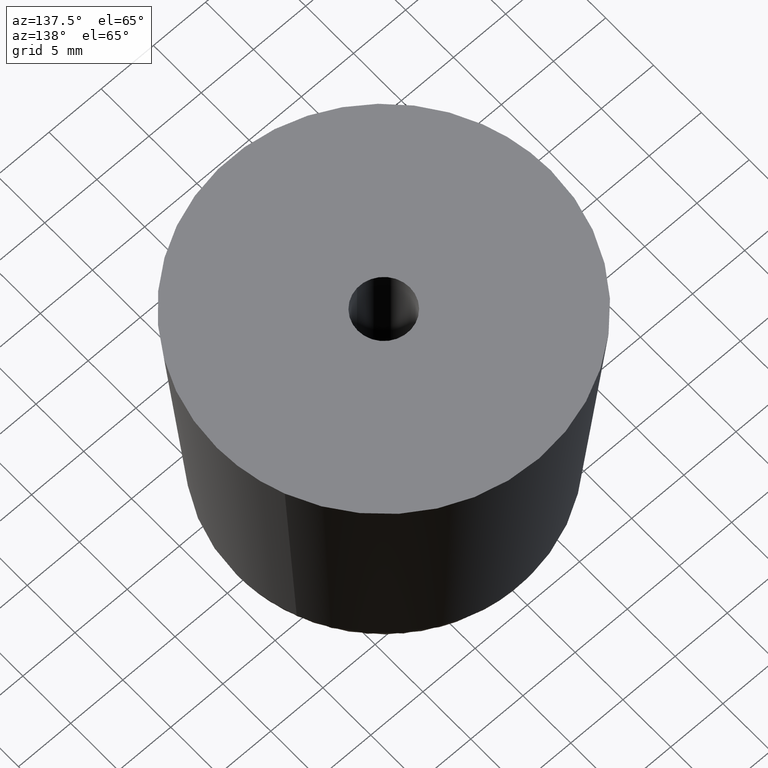
[diagram: clean part render]
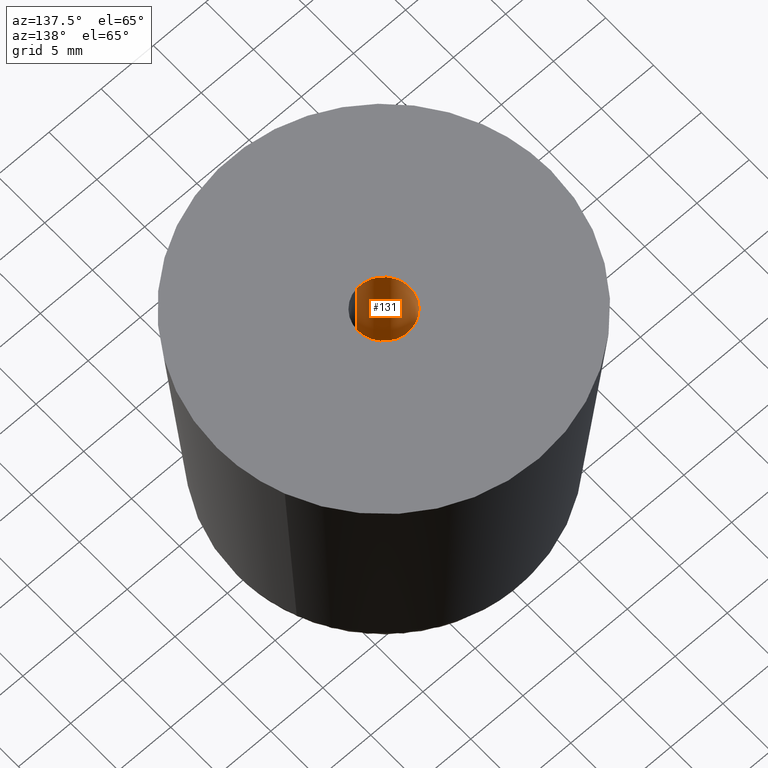
[diagram: same view with one face highlighted and labeled with its STEP entity id]
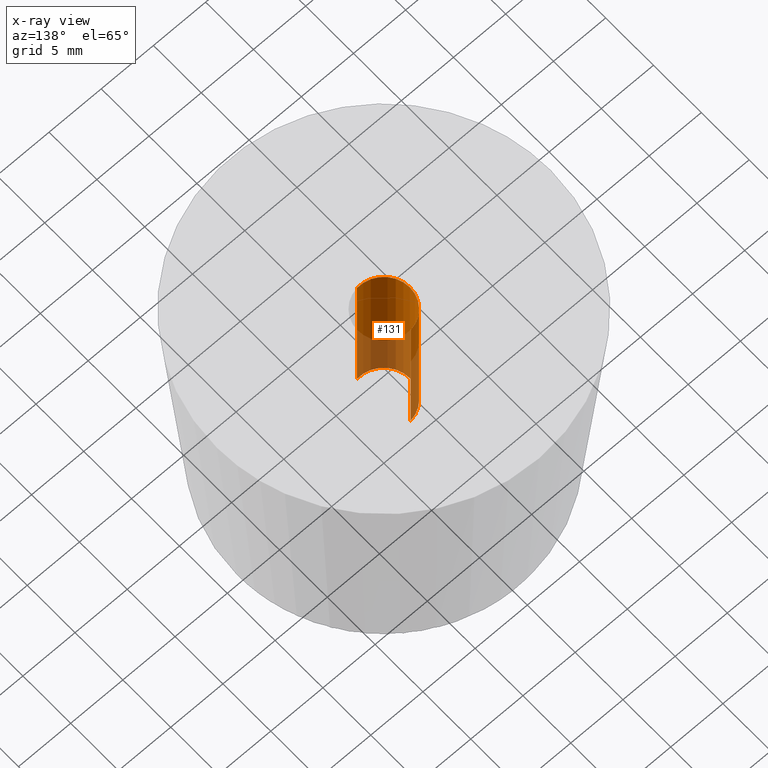
[diagram: x-ray of the same camera — body ghosted, the highlighted face saturated]
A machine part, auxiliary view. The second image highlights one B-rep face of the part: STEP entity #131.
The next image is the same camera in x-ray: the body ghosted, the highlighted face saturated — about 39% of this face is hidden behind the body in this view.
In plain terms, the highlighted cylindrical surface (edge-blend (fillet) strip) has radius 2.5 mm, axis along (-0, -0, 1).
Its self-contained STEP definition (entity closure, byte-faithful):
#131=ADVANCED_FACE('',(#329),#328,.F.);
#328=CYLINDRICAL_SURFACE('',#496,2.50000000000E+000);
#329=FACE_OUTER_BOUND('',#497,.T.);
#493=CARTESIAN_POINT('',(-1.34531488175E-013,-2.74441362098E-014,2.53800000000E+001));
#494=DIRECTION('',(-1.68815762727E-014,-3.43772070261E-015,1.00000000000E+000));
#495=DIRECTION('',(1.18034234657E-001,-9.93009526364E-001,-1.42108547152E-015));
#496=AXIS2_PLACEMENT_3D('',#493,#494,#495);
#497=EDGE_LOOP('',(#612,#613,#614,#615,#616,#617));
#612=ORIENTED_EDGE('',*,*,#645,.F.);
#613=ORIENTED_EDGE('',*,*,#647,.F.);
#614=ORIENTED_EDGE('',*,*,#676,.F.);
#615=ORIENTED_EDGE('',*,*,#657,.T.);
#616=ORIENTED_EDGE('',*,*,#659,.T.);
#617=ORIENTED_EDGE('',*,*,#677,.T.);
#645=EDGE_CURVE('',#863,#864,#865,.T.);
#647=EDGE_CURVE('',#871,#863,#878,.T.);
#657=EDGE_CURVE('',#947,#948,#949,.T.);
#659=EDGE_CURVE('',#948,#955,#962,.T.);
#676=EDGE_CURVE('',#947,#871,#1072,.T.);
#677=EDGE_CURVE('',#955,#864,#1078,.T.);
#863=VERTEX_POINT('',#1207);
#864=VERTEX_POINT('',#1208);
#865=CIRCLE('',#1212,2.50000000000E+000);
#871=VERTEX_POINT('',#1213);
#878=CIRCLE('',#1221,2.50000000000E+000);
#947=VERTEX_POINT('',#1267);
#948=VERTEX_POINT('',#1268);
#949=CIRCLE('',#1272,2.50000000000E+000);
#955=VERTEX_POINT('',#1273);
#962=CIRCLE('',#1281,2.50000000000E+000);
#1072=(BOUNDED_CURVE() B_SPLINE_CURVE(1,(#1341,#1342),.UNSPECIFIED.,.F.,.F.) B_SPLINE_CURVE_WITH_KNOTS((2,2),(8.33333328360E-002,9.16666666871E-001),.UNSPECIFIED.) CURVE() GEOMETRIC_REPRESENTATION_ITEM() RATIONAL_B_SPLINE_CURVE((1.00000000000E+000,1.00000000000E+000)) REPRESENTATION_ITEM('') );
#1078=(BOUNDED_CURVE() B_SPLINE_CURVE(1,(#1343,#1344),.UNSPECIFIED.,.F.,.F.) B_SPLINE_CURVE_WITH_KNOTS((2,2),(8.33333333333E-002,9.16666666667E-001),.UNSPECIFIED.) CURVE() GEOMETRIC_REPRESENTATION_ITEM() RATIONAL_B_SPLINE_CURVE((7.50000000000E-001,7.50000000000E-001)) REPRESENTATION_ITEM('') );
#1207=CARTESIAN_POINT('',(-2.50000000000E+000,4.44089209850E-016,2.50000000000E+001));
#1208=CARTESIAN_POINT('',(-2.95514653005E-001,2.48247277726E+000,2.50000000000E+001));
#1209=CARTESIAN_POINT('',(1.11022302463E-015,6.66133814775E-016,2.50000000000E+001));
#1210=DIRECTION('',(7.18398078852E-014,1.28325185401E-014,-1.00000000000E+000));
#1211=DIRECTION('',(-1.00000000000E+000,2.77555756156E-016,-7.18398078852E-014));
#1212=AXIS2_PLACEMENT_3D('',#1209,#1210,#1211);
#1213=CARTESIAN_POINT('',(2.95084678797E-001,-2.48252392382E+000,2.50000000000E+001));
#1218=CARTESIAN_POINT('',(1.11022302463E-015,6.66133814775E-016,2.50000000000E+001));
#1219=DIRECTION('',(7.18398078852E-014,1.28325185401E-014,-1.00000000000E+000));
#1220=DIRECTION('',(-1.00000000000E+000,2.77555756156E-016,-7.18398078852E-014));
#1221=AXIS2_PLACEMENT_3D('',#1218,#1219,#1220);
#1267=CARTESIAN_POINT('',(2.95084678797E-001,-2.48252392382E+000,9.80000000000E+000));
#1268=CARTESIAN_POINT('',(-2.50000000000E+000,4.44089209850E-016,9.80000000000E+000));
#1269=CARTESIAN_POINT('',(1.11022302463E-015,6.66133814775E-016,9.80000000000E+000));
#1270=DIRECTION('',(2.41071846277E-015,1.00209516436E-015,-1.00000000000E+000));
#1271=DIRECTION('',(-1.00000000000E+000,2.77555756156E-016,-2.41071846277E-015));
#1272=AXIS2_PLACEMENT_3D('',#1269,#1270,#1271);
#1273=CARTESIAN_POINT('',(-2.95514653005E-001,2.48247277726E+000,9.80000000000E+000));
#1278=CARTESIAN_POINT('',(1.11022302463E-015,6.66133814775E-016,9.80000000000E+000));
#1279=DIRECTION('',(2.41071846277E-015,1.00209516436E-015,-1.00000000000E+000));
#1280=DIRECTION('',(-1.00000000000E+000,2.77555756156E-016,-2.41071846277E-015));
#1281=AXIS2_PLACEMENT_3D('',#1278,#1279,#1280);
#1341=CARTESIAN_POINT('',(2.95085586642E-001,-2.48252381591E+000,9.79999999093E+000));
#1342=CARTESIAN_POINT('',(2.95085586642E-001,-2.48252381591E+000,2.50000000037E+001));
#1343=CARTESIAN_POINT('',(-2.95085586642E-001,2.48252381591E+000,9.80000000000E+000));
#1344=CARTESIAN_POINT('',(-2.95085586642E-001,2.48252381591E+000,2.50000000000E+001));